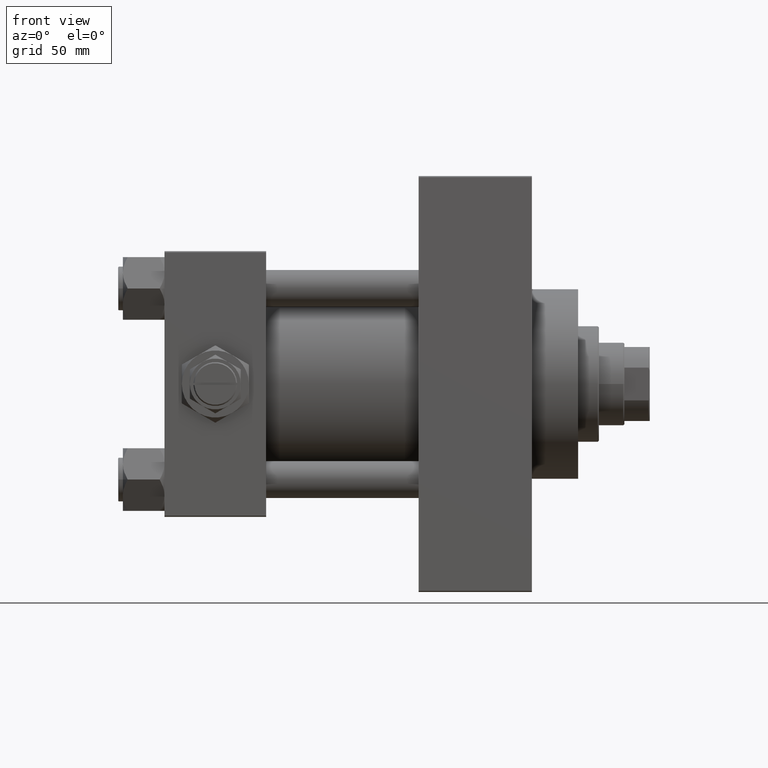
[diagram: clean part render]
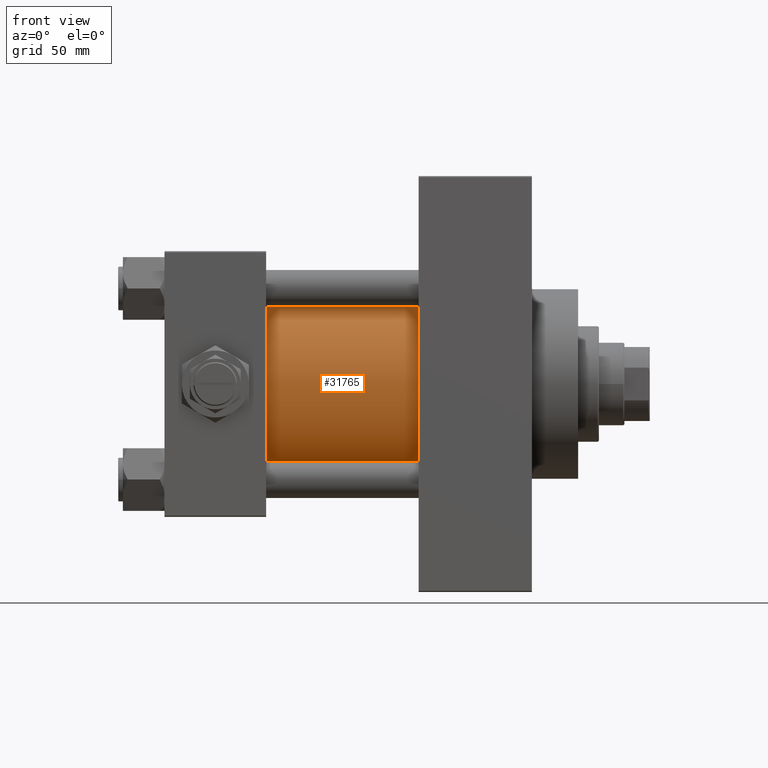
[diagram: same view with one face highlighted and labeled with its STEP entity id]
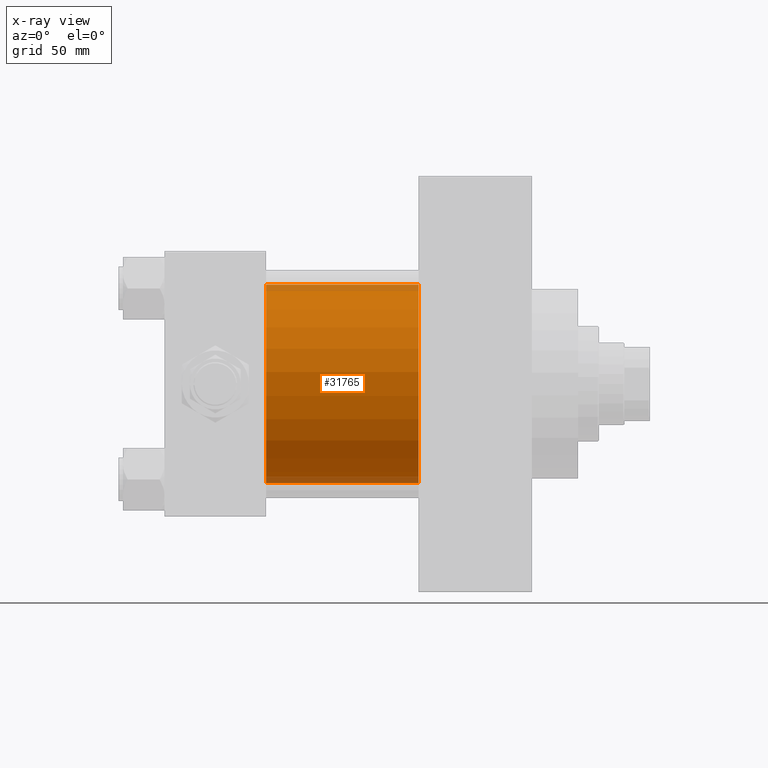
[diagram: x-ray of the same camera — body ghosted, the highlighted face saturated]
A machine part, front view. The second image highlights one B-rep face of the part: STEP entity #31765.
The next image is the same camera in x-ray: the body ghosted, the highlighted face saturated — about 7% of this face is hidden behind the body in this view.
In plain terms, the highlighted cylindrical surface (partial cylindrical patch) has radius 43 mm, axis along (-1, -0, -0).
Its self-contained STEP definition (entity closure, byte-faithful):
#80 = CYLINDRICAL_SURFACE ( 'NONE', #26765, 43.00000000000000000 ) ;
#239 = EDGE_CURVE ( 'NONE', #13962, #15746, #7946, .T. ) ;
#1317 = CARTESIAN_POINT ( 'NONE',  ( 110.0000000000000000, -2.602085213965210642E-15, 0.000000000000000000 ) ) ;
#2424 = VERTEX_POINT ( 'NONE', #48954 ) ;
#5575 = DIRECTION ( 'NONE',  ( 0.000000000000000000, 0.000000000000000000, -1.000000000000000000 ) ) ;
#6180 = EDGE_CURVE ( 'NONE', #2424, #13962, #19810, .T. ) ;
#6969 = DIRECTION ( 'NONE',  ( -1.000000000000000000, -0.000000000000000000, -0.000000000000000000 ) ) ;
#7321 = CARTESIAN_POINT ( 'NONE',  ( 44.00000000000000000, 2.663896022368408223E-15, -43.00000000000000000 ) ) ;
#7946 = LINE ( 'NONE', #29994, #23600 ) ;
#10513 = ORIENTED_EDGE ( 'NONE', *, *, #6180, .F. ) ;
#11668 = CARTESIAN_POINT ( 'NONE',  ( 44.00000000000000000, -2.602085213965210642E-15, 43.00000000000000000 ) ) ;
#13962 = VERTEX_POINT ( 'NONE', #48292 ) ;
#15746 = VERTEX_POINT ( 'NONE', #7321 ) ;
#16509 = EDGE_LOOP ( 'NONE', ( #38167, #10513, #42326, #20922 ) ) ;
#17765 = EDGE_CURVE ( 'NONE', #28702, #15746, #22378, .T. ) ;
#19810 = CIRCLE ( 'NONE', #37370, 43.00000000000000000 ) ;
#20088 = DIRECTION ( 'NONE',  ( 0.000000000000000000, 0.000000000000000000, 1.000000000000000000 ) ) ;
#20922 = ORIENTED_EDGE ( 'NONE', *, *, #17765, .T. ) ;
#22378 = CIRCLE ( 'NONE', #40739, 43.00000000000000000 ) ;
#23600 = VECTOR ( 'NONE', #6969, 1000.000000000000000 ) ;
#25169 = VECTOR ( 'NONE', #29155, 1000.000000000000000 ) ;
#26765 = AXIS2_PLACEMENT_3D ( 'NONE', #34597, #27122, #20088 ) ;
#27122 = DIRECTION ( 'NONE',  ( -1.000000000000000000, -0.000000000000000000, -0.000000000000000000 ) ) ;
#28702 = VERTEX_POINT ( 'NONE', #11668 ) ;
#29155 = DIRECTION ( 'NONE',  ( -1.000000000000000000, -0.000000000000000000, -0.000000000000000000 ) ) ;
#29994 = CARTESIAN_POINT ( 'NONE',  ( 110.0000000000000000, 2.663896022368408223E-15, -43.00000000000000000 ) ) ;
#31757 = DIRECTION ( 'NONE',  ( 1.000000000000000000, -0.000000000000000000, 0.000000000000000000 ) ) ;
#31765 = ADVANCED_FACE ( 'NONE', ( #45573 ), #80, .T. ) ;
#32157 = CARTESIAN_POINT ( 'NONE',  ( 110.0000000000000000, -2.602085213965210642E-15, 43.00000000000000000 ) ) ;
#32470 = EDGE_CURVE ( 'NONE', #2424, #28702, #48106, .T. ) ;
#34597 = CARTESIAN_POINT ( 'NONE',  ( 110.0000000000000000, -2.602085213965210642E-15, 0.000000000000000000 ) ) ;
#35491 = CARTESIAN_POINT ( 'NONE',  ( 44.00000000000000000, -2.602085213965210642E-15, 0.000000000000000000 ) ) ;
#37370 = AXIS2_PLACEMENT_3D ( 'NONE', #1317, #39089, #5575 ) ;
#38167 = ORIENTED_EDGE ( 'NONE', *, *, #239, .F. ) ;
#39089 = DIRECTION ( 'NONE',  ( 1.000000000000000000, 0.000000000000000000, 0.000000000000000000 ) ) ;
#40739 = AXIS2_PLACEMENT_3D ( 'NONE', #35491, #31757, #46961 ) ;
#42326 = ORIENTED_EDGE ( 'NONE', *, *, #32470, .T. ) ;
#45573 = FACE_OUTER_BOUND ( 'NONE', #16509, .T. ) ;
#46961 = DIRECTION ( 'NONE',  ( 0.000000000000000000, 0.000000000000000000, 1.000000000000000000 ) ) ;
#48106 = LINE ( 'NONE', #32157, #25169 ) ;
#48292 = CARTESIAN_POINT ( 'NONE',  ( 110.0000000000000000, 2.663896022368408223E-15, -43.00000000000000000 ) ) ;
#48954 = CARTESIAN_POINT ( 'NONE',  ( 110.0000000000000000, -2.602085213965210642E-15, 43.00000000000000000 ) ) ;